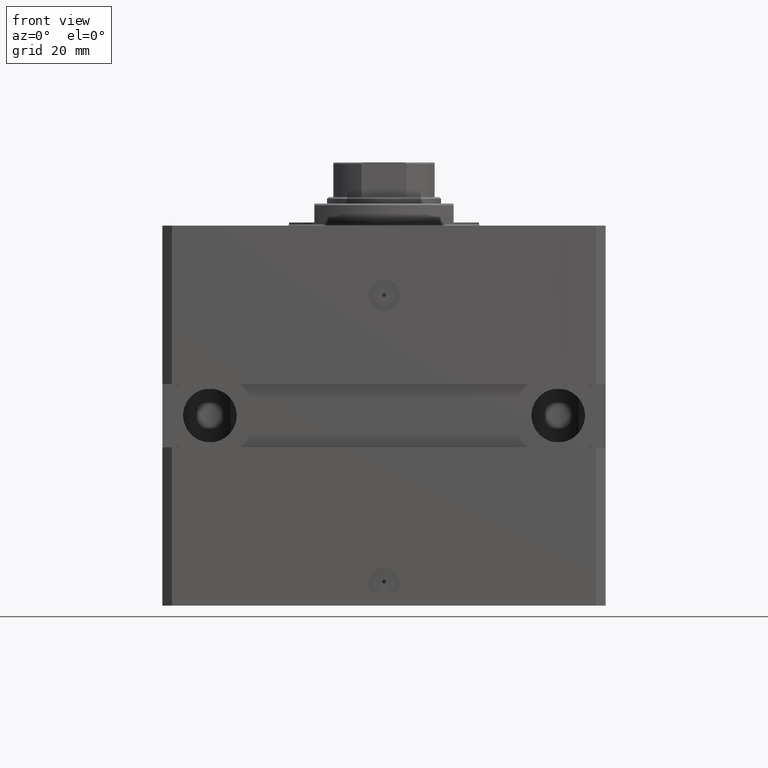
[diagram: clean part render]
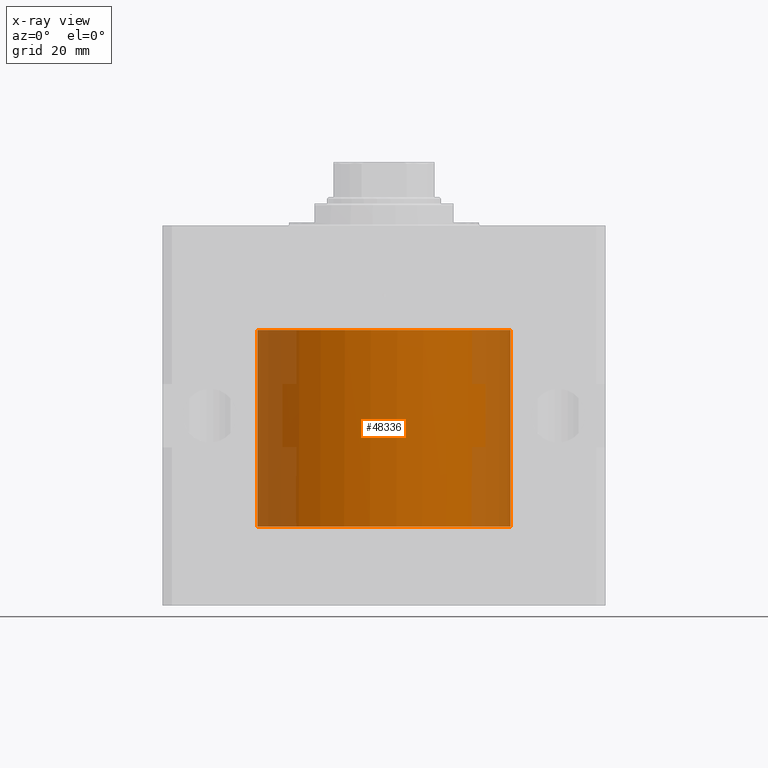
[diagram: x-ray — body ghosted, one internal face saturated and labeled with its STEP entity id]
A machine part, front view, then the same camera in x-ray: the body is ghosted and one INTERNAL B-rep face — a face not visible from any outside direction — is saturated and labeled: STEP entity #48336.
In plain terms, the highlighted cylindrical surface (partial cylindrical patch) has radius 40 mm, axis along (0, 0, 1).
Its self-contained STEP definition (entity closure, byte-faithful):
#1614 = CARTESIAN_POINT ( 'NONE',  ( 40.00000000000000000, 0.000000000000000000, -95.00000000000000000 ) ) ;
#1670 = CARTESIAN_POINT ( 'NONE',  ( 39.99511688944039633, -0.6249999999999720224, -35.00000000000000000 ) ) ;
#1932 = AXIS2_PLACEMENT_3D ( 'NONE', #39845, #17634, #32673 ) ;
#1936 = B_SPLINE_CURVE_WITH_KNOTS ( 'NONE', 3,
 ( #12738, #12498, #31954, #38396, #38641, #5073 ),
 .UNSPECIFIED., .F., .F.,
 ( 4, 2, 4 ),
 ( 0.001954065476890883609, 0.002442730933402861241, 0.002931396389914838873 ),
 .UNSPECIFIED. ) ;
#2330 = CARTESIAN_POINT ( 'NONE',  ( 40.00000000000000000, 0.000000000000000000, -95.00000000000000000 ) ) ;
#2578 = CARTESIAN_POINT ( 'NONE',  ( 40.00000000000000000, 0.000000000000000000, -33.00000000000000000 ) ) ;
#2587 = ORIENTED_EDGE ( 'NONE', *, *, #32158, .F. ) ;
#2633 = CARTESIAN_POINT ( 'NONE',  ( 40.00000000000000000, -8.127381911450081348E-16, -35.62500000000000711 ) ) ;
#3135 = CARTESIAN_POINT ( 'NONE',  ( 0.000000000000000000, 0.000000000000000000, -95.00000000000000000 ) ) ;
#4128 = CARTESIAN_POINT ( 'NONE',  ( -40.00000000000000000, 4.898587196589413026E-15, -33.00000000000000000 ) ) ;
#4581 = VERTEX_POINT ( 'NONE', #15376 ) ;
#5073 = CARTESIAN_POINT ( 'NONE',  ( 39.99511688944039633, -0.6249999999999720224, -35.00000000000000000 ) ) ;
#6480 = B_SPLINE_CURVE_WITH_KNOTS ( 'NONE', 3,
 ( #46269, #43063, #16422, #31456, #16901, #46510 ),
 .UNSPECIFIED., .F., .F.,
 ( 4, 2, 4 ),
 ( 0.0009772540344091204013, 0.001465458787294973784, 0.001953663540180827166 ),
 .UNSPECIFIED. ) ;
#6985 = B_SPLINE_CURVE_WITH_KNOTS ( 'NONE', 3,
 ( #1670, #28787, #39421, #12782, #36433, #2633 ),
 .UNSPECIFIED., .F., .F.,
 ( 4, 2, 4 ),
 ( 0.002931396389914838873, 0.003419542976850247634, 0.003907689563785655962 ),
 .UNSPECIFIED. ) ;
#8314 = EDGE_CURVE ( 'NONE', #4581, #24568, #1936, .T. ) ;
#11086 = DIRECTION ( 'NONE',  ( -0.000000000000000000, -0.000000000000000000, 1.000000000000000000 ) ) ;
#11414 = VERTEX_POINT ( 'NONE', #24375 ) ;
#11510 = EDGE_CURVE ( 'NONE', #24568, #34266, #6985, .T. ) ;
#11950 = EDGE_CURVE ( 'NONE', #4581, #32277, #43537, .T. ) ;
#12498 = CARTESIAN_POINT ( 'NONE',  ( 40.00000000000000000, -0.1632152083945064558, -34.37499999999985789 ) ) ;
#12738 = CARTESIAN_POINT ( 'NONE',  ( 40.00000000000004974, 3.413887943360836494E-13, -34.37499999999679545 ) ) ;
#12782 = CARTESIAN_POINT ( 'NONE',  ( 39.99883135486995656, -0.3267787194431996944, -35.55717253827553748 ) ) ;
#13528 = VERTEX_POINT ( 'NONE', #40447 ) ;
#14205 = CIRCLE ( 'NONE', #30760, 40.00000000000000000 ) ;
#15346 = CIRCLE ( 'NONE', #1932, 40.00000000000000000 ) ;
#15376 = CARTESIAN_POINT ( 'NONE',  ( 40.00000000000004974, 3.413887943360836494E-13, -34.37499999999679545 ) ) ;
#16410 = DIRECTION ( 'NONE',  ( -0.000000000000000000, -0.000000000000000000, 1.000000000000000000 ) ) ;
#16422 = CARTESIAN_POINT ( 'NONE',  ( 39.99884891268878562, -0.3251103027878494145, -94.44131772510860401 ) ) ;
#16667 = DIRECTION ( 'NONE',  ( -0.000000000000000000, -0.000000000000000000, 1.000000000000000000 ) ) ;
#16901 = CARTESIAN_POINT ( 'NONE',  ( 39.99511688944039633, -0.6249999999999787947, -94.83492185971168453 ) ) ;
#17634 = DIRECTION ( 'NONE',  ( 0.000000000000000000, 0.000000000000000000, 1.000000000000000000 ) ) ;
#17744 = CARTESIAN_POINT ( 'NONE',  ( 40.00000000000000000, -8.127381911450081348E-16, -35.62500000000000711 ) ) ;
#19316 = EDGE_CURVE ( 'NONE', #32631, #13528, #6480, .T. ) ;
#19966 = EDGE_CURVE ( 'NONE', #48427, #32277, #14205, .T. ) ;
#22675 = DIRECTION ( 'NONE',  ( 1.000000000000000000, 0.000000000000000000, 0.000000000000000000 ) ) ;
#23419 = ORIENTED_EDGE ( 'NONE', *, *, #19966, .T. ) ;
#24375 = CARTESIAN_POINT ( 'NONE',  ( -40.00000000000000000, 4.898587196589413026E-15, -95.00000000000000000 ) ) ;
#24568 = VERTEX_POINT ( 'NONE', #41468 ) ;
#24622 = DIRECTION ( 'NONE',  ( -0.000000000000000000, -0.000000000000000000, 1.000000000000000000 ) ) ;
#26141 = DIRECTION ( 'NONE',  ( 0.000000000000000000, 0.000000000000000000, 1.000000000000000000 ) ) ;
#26363 = VECTOR ( 'NONE', #16667, 1000.000000000000000 ) ;
#28787 = CARTESIAN_POINT ( 'NONE',  ( 39.99511688944040344, -0.6249999999999721334, -35.16477063501738343 ) ) ;
#29460 = EDGE_LOOP ( 'NONE', ( #34834, #40897, #23419, #32508, #40178, #38300, #2587, #29916 ) ) ;
#29577 = CARTESIAN_POINT ( 'NONE',  ( 0.000000000000000000, 0.000000000000000000, -33.00000000000000000 ) ) ;
#29916 = ORIENTED_EDGE ( 'NONE', *, *, #19316, .T. ) ;
#30760 = AXIS2_PLACEMENT_3D ( 'NONE', #29577, #26141, #22675 ) ;
#31456 = CARTESIAN_POINT ( 'NONE',  ( 39.99627192929612107, -0.5584288736111907570, -94.67445463238748005 ) ) ;
#31954 = CARTESIAN_POINT ( 'NONE',  ( 39.99883395724564394, -0.3264758754575479149, -34.44265923857432199 ) ) ;
#32158 = EDGE_CURVE ( 'NONE', #32631, #34266, #38629, .T. ) ;
#32205 = EDGE_CURVE ( 'NONE', #11414, #13528, #15346, .T. ) ;
#32277 = VERTEX_POINT ( 'NONE', #2578 ) ;
#32508 = ORIENTED_EDGE ( 'NONE', *, *, #11950, .F. ) ;
#32631 = VERTEX_POINT ( 'NONE', #37787 ) ;
#32673 = DIRECTION ( 'NONE',  ( 1.000000000000000000, 0.000000000000000000, 0.000000000000000000 ) ) ;
#32747 = DIRECTION ( 'NONE',  ( 1.000000000000000000, 0.000000000000000000, 0.000000000000000000 ) ) ;
#34266 = VERTEX_POINT ( 'NONE', #17744 ) ;
#34490 = CARTESIAN_POINT ( 'NONE',  ( -40.00000000000000000, 4.898587196589413026E-15, -95.00000000000000000 ) ) ;
#34834 = ORIENTED_EDGE ( 'NONE', *, *, #32205, .F. ) ;
#36433 = CARTESIAN_POINT ( 'NONE',  ( 40.00000000000000000, -0.1650584841918805723, -35.62500000000000711 ) ) ;
#36692 = CYLINDRICAL_SURFACE ( 'NONE', #40844, 40.00000000000000000 ) ;
#37716 = LINE ( 'NONE', #34490, #42300 ) ;
#37787 = CARTESIAN_POINT ( 'NONE',  ( 40.00000000000012790, -9.754349025119706298E-13, -94.37499999999168665 ) ) ;
#38300 = ORIENTED_EDGE ( 'NONE', *, *, #11510, .T. ) ;
#38396 = CARTESIAN_POINT ( 'NONE',  ( 39.99628591030150204, -0.5571515215628750628, -34.67320127964985232 ) ) ;
#38629 = LINE ( 'NONE', #1614, #26363 ) ;
#38641 = CARTESIAN_POINT ( 'NONE',  ( 39.99511688944039633, -0.6249999999999720224, -34.83505422400671847 ) ) ;
#39421 = CARTESIAN_POINT ( 'NONE',  ( 39.99628281203343505, -0.5573646083576972998, -35.32645101047418734 ) ) ;
#39845 = CARTESIAN_POINT ( 'NONE',  ( 0.000000000000000000, 0.000000000000000000, -95.00000000000000000 ) ) ;
#40178 = ORIENTED_EDGE ( 'NONE', *, *, #8314, .T. ) ;
#40447 = CARTESIAN_POINT ( 'NONE',  ( 39.99511688944039633, -0.6249999999999786837, -95.00000000000000000 ) ) ;
#40796 = VECTOR ( 'NONE', #16410, 1000.000000000000000 ) ;
#40844 = AXIS2_PLACEMENT_3D ( 'NONE', #3135, #24622, #32747 ) ;
#40897 = ORIENTED_EDGE ( 'NONE', *, *, #41131, .T. ) ;
#41131 = EDGE_CURVE ( 'NONE', #11414, #48427, #37716, .T. ) ;
#41468 = CARTESIAN_POINT ( 'NONE',  ( 39.99511688944039633, -0.6249999999999720224, -35.00000000000000000 ) ) ;
#42300 = VECTOR ( 'NONE', #11086, 1000.000000000000000 ) ;
#43063 = CARTESIAN_POINT ( 'NONE',  ( 39.99999999999998579, -0.1629608811977098504, -94.37500000000035527 ) ) ;
#43537 = LINE ( 'NONE', #2330, #40796 ) ;
#44116 = FACE_OUTER_BOUND ( 'NONE', #29460, .T. ) ;
#46269 = CARTESIAN_POINT ( 'NONE',  ( 40.00000000000012790, -9.754349025119706298E-13, -94.37499999999168665 ) ) ;
#46510 = CARTESIAN_POINT ( 'NONE',  ( 39.99511688944039633, -0.6249999999999786837, -95.00000000000000000 ) ) ;
#48336 = ADVANCED_FACE ( 'NONE', ( #44116 ), #36692, .F. ) ;
#48427 = VERTEX_POINT ( 'NONE', #4128 ) ;